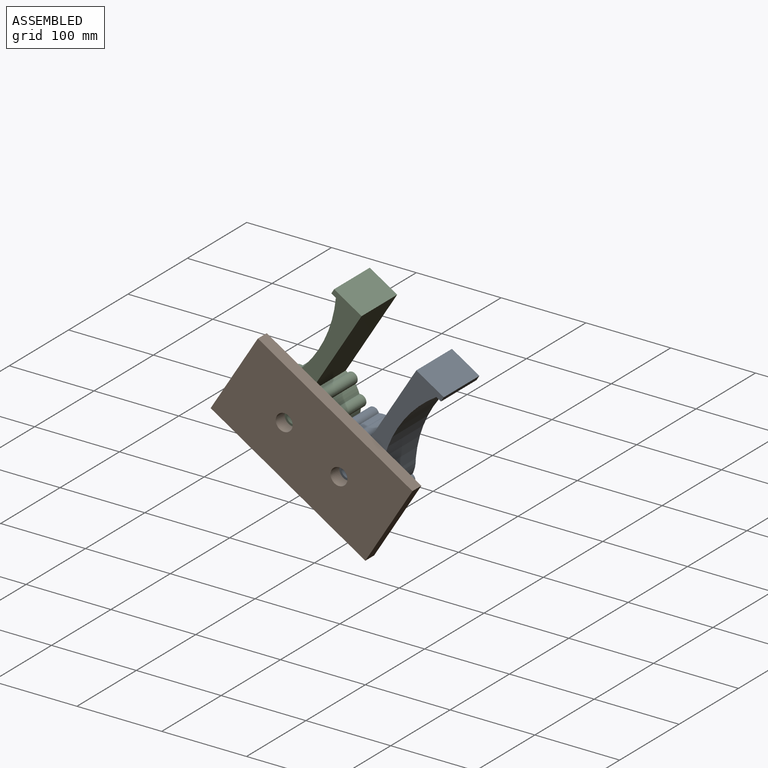
[diagram: assembled view]
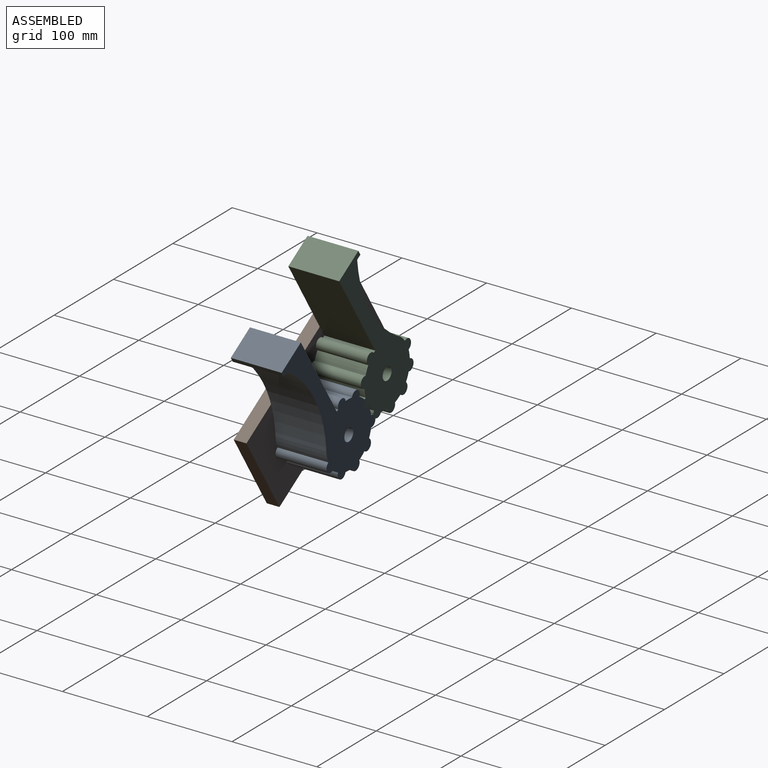
[diagram: assembled view, second angle]
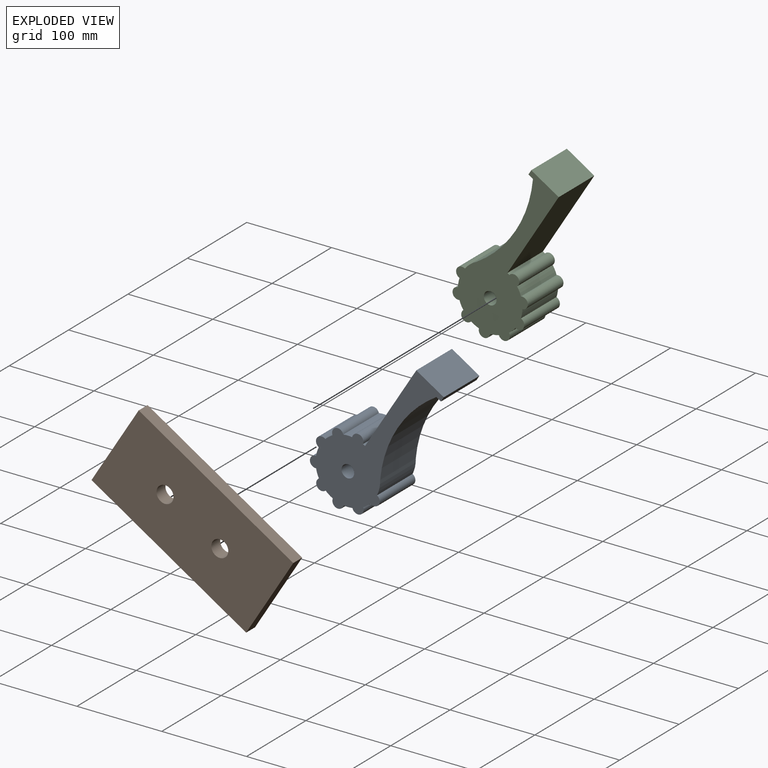
[diagram: exploded view]
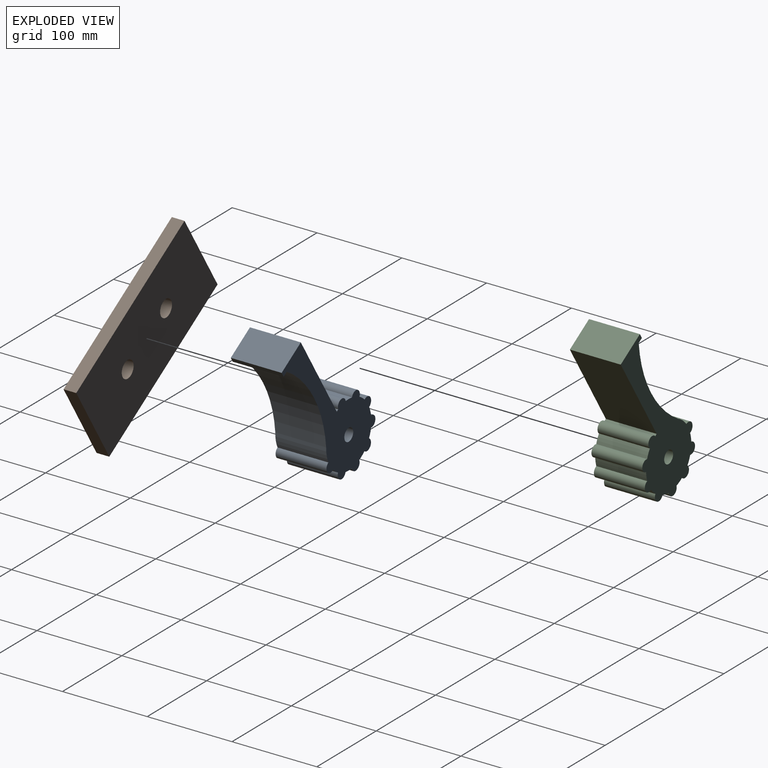
[diagram: exploded view, second angle]
ASSEMBLY  parts=3 mates=2
PART A: 25 faces, bbox 89.4x60x196 mm
  f0: cylinder r=6.66mm len=60mm, axis (0,1,0), area 1326.1mm2, adj f1,f21,f23,f24
  f1: cylinder r=38.1mm len=60mm, axis (0,1,0), area 635.7mm2, adj f0,f2,f23,f24
  f2: cylinder r=6.66mm len=60mm, axis (0,1,0), area 1326.1mm2, adj f1,f3,f23,f24
  f3: cylinder r=38.1mm len=60mm, axis (0,1,0), area 635.7mm2, adj f2,f4,f23,f24
  f4: cylinder r=6.66mm len=60mm, axis (0,1,0), area 1326.1mm2, adj f3,f5,f23,f24
  f5: cylinder r=38.1mm len=60mm, axis (0,1,0), area 635.7mm2, adj f4,f6,f23,f24
  f6: cylinder r=6.66mm len=60mm, axis (0,1,0), area 1326.1mm2, adj f5,f7,f23,f24
  f7: cylinder r=38.1mm len=60mm, axis (0,1,0), area 635.7mm2, adj f6,f8,f23,f24
  f8: cylinder r=6.66mm len=60mm, axis (0,1,0), area 1326.1mm2, adj f7,f9,f23,f24
  f9: cylinder r=38.1mm len=60mm, axis (0,1,0), area 635.7mm2, adj f8,f10,f23,f24
  f10: cylinder r=6.66mm len=60mm, axis (0,1,0), area 1326.1mm2, adj f9,f11,f23,f24
  f11: cylinder r=38.1mm len=60mm, axis (0,1,0), area 1086.2mm2, adj f10,f12,f23,f24
  f12: cylinder r=139.7mm len=124.99mm, axis (0,1,0), area 7775.1mm2, adj f11,f13,f23,f24
  f13: plane 60x6.35mm, normal (0,0,-1), area 381mm2, adj f12,f14,f23,f24
  f14: plane 60x6.35mm, normal (1,0,0), area 381mm2, adj f13,f15,f23,f24
  f15: plane 60x38.1mm, normal (0,0,1), area 2286mm2, adj f14,f16,f23,f24
  f16: plane 114.3x60mm, normal (-1,0,0), area 6858mm2, adj f15,f17,f23,f24
  f17: cylinder r=38.1mm len=60mm, axis (0,1,0), area 170.1mm2, adj f16,f18,f23,f24
  f18: cylinder r=6.66mm len=60mm, axis (0,1,0), area 1326.1mm2, adj f17,f19,f23,f24
  f19: cylinder r=38.1mm len=60mm, axis (0,1,0), area 635.7mm2, adj f18,f20,f23,f24
  f20: cylinder r=6.66mm len=60mm, axis (0,1,0), area 1326.1mm2, adj f19,f21,f23,f24
  f21: cylinder r=38.1mm len=60mm, axis (0,1,0), area 635.7mm2, adj f0,f20,f23,f24
  f22: cylinder r=7.5mm len=60mm, axis (0,1,0), area 2827.4mm2, adj f23,f24
  f23: plane 195.98x89.37mm, normal (0,-1,0), area 7548.7mm2, adj f0,f1,f2,f3,f4,f5,f6,f7
  f24: plane 195.98x89.37mm, normal (0,1,0), area 7548.7mm2, adj f0,f1,f2,f3,f4,f5,f6,f7
PART B: 8 faces, bbox 215x105x15 mm
  f0: plane 215x15mm, normal (0,1,0), area 3225mm2, adj f1,f5,f6,f7
  f1: plane 105x15mm, normal (-1,0,0), area 1575mm2, adj f0,f2,f6,f7
  f2: plane 215x15mm, normal (0,-1,0), area 3225mm2, adj f1,f5,f6,f7
  f3: cylinder r=10mm len=20mm, axis (0,0,-1), area 942.5mm2, adj f6,f7
  f4: cylinder r=10mm len=20mm, axis (0,0,-1), area 942.5mm2, adj f6,f7
  f5: plane 105x15mm, normal (1,0,0), area 1575mm2, adj f0,f2,f6,f7
  f6: plane 215x105mm, normal (0,0,1), area 21946.7mm2, adj f0,f1,f2,f3,f4,f5
  f7: plane 215x105mm, normal (0,0,-1), area 21946.7mm2, adj f0,f1,f2,f3,f4,f5
PART C: same geometry as A
PLACE A rot(axis=(0,1,0),32deg) t=(-86.52,-102.9,-41.83)mm
PLACE B rot(axis=(-0.93,0.27,0.27),94.4deg) t=(-118.83,-177.9,-21.64)mm
PLACE C rot(axis=(-0.28,0,-0.96),180deg) t=(-151.14,-162.9,-1.45)mm
MATE revolute A.f22 <-> B.f4  axis (0,-1,0) through (-86.52,-162.9,-41.83)mm
MATE revolute C.f22 <-> B.f3  axis (0,-1,0) through (-151.14,-162.9,-1.45)mm
